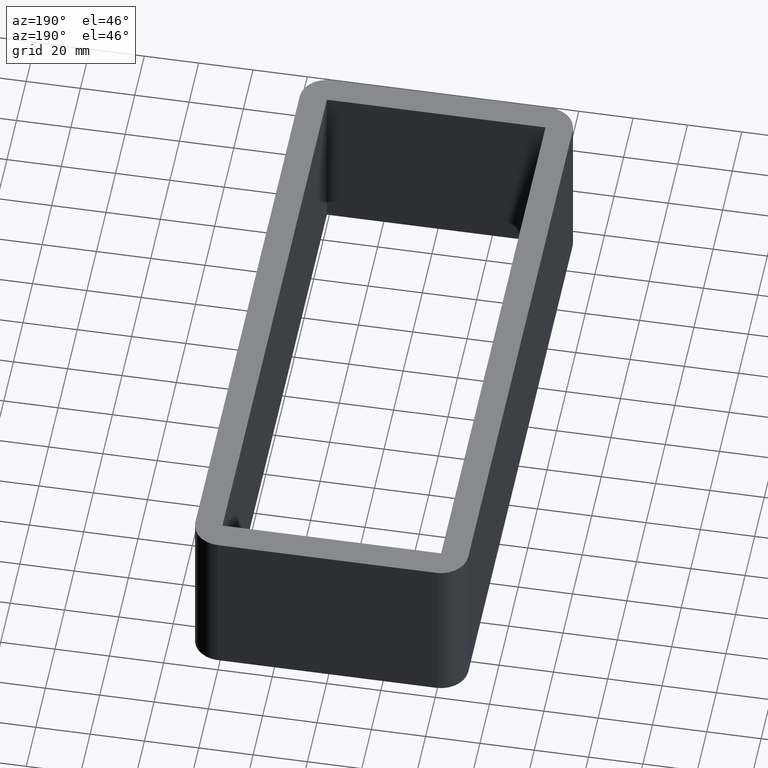
[diagram: clean part render]
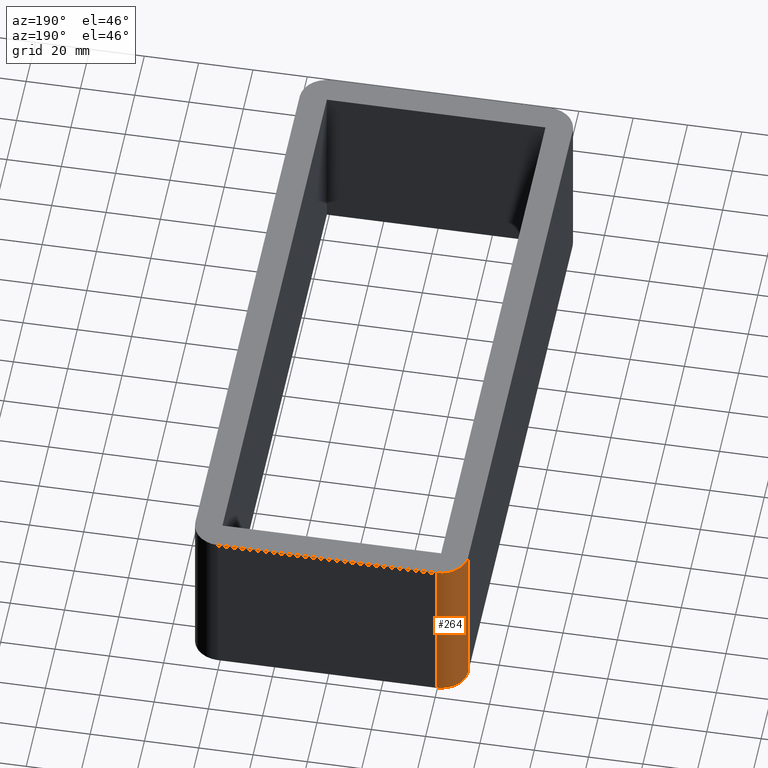
[diagram: same view with one face highlighted and labeled with its STEP entity id]
A machine part, auxiliary view. The second image highlights one B-rep face of the part: STEP entity #264.
In plain terms, the highlighted cylindrical surface (edge-blend (fillet) strip) has radius 10 mm, axis along (0, 0, -1).
Its self-contained STEP definition (entity closure, byte-faithful):
#21=CIRCLE('',#302,10.);
#22=CIRCLE('',#304,10.);
#26=CYLINDRICAL_SURFACE('',#303,10.);
#36=FACE_OUTER_BOUND('',#51,.T.);
#51=EDGE_LOOP('',(#211,#212,#213,#214));
#74=LINE('',#425,#102);
#79=LINE('',#441,#107);
#102=VECTOR('',#346,10.);
#107=VECTOR('',#361,10.);
#127=VERTEX_POINT('',#422);
#128=VERTEX_POINT('',#424);
#133=VERTEX_POINT('',#436);
#134=VERTEX_POINT('',#440);
#156=EDGE_CURVE('',#128,#127,#74,.T.);
#163=EDGE_CURVE('',#127,#133,#21,.T.);
#164=EDGE_CURVE('',#133,#134,#79,.T.);
#165=EDGE_CURVE('',#134,#128,#22,.T.);
#211=ORIENTED_EDGE('',*,*,#163,.T.);
#212=ORIENTED_EDGE('',*,*,#164,.T.);
#213=ORIENTED_EDGE('',*,*,#165,.T.);
#214=ORIENTED_EDGE('',*,*,#156,.T.);
#264=ADVANCED_FACE('',(#36),#26,.T.);
#302=AXIS2_PLACEMENT_3D('',#438,#357,#358);
#303=AXIS2_PLACEMENT_3D('',#439,#359,#360);
#304=AXIS2_PLACEMENT_3D('',#442,#362,#363);
#346=DIRECTION('',(0.,0.,-1.));
#357=DIRECTION('center_axis',(0.,0.,1.));
#358=DIRECTION('ref_axis',(-0.707106781186547,0.707106781186547,0.));
#359=DIRECTION('center_axis',(0.,0.,-1.));
#360=DIRECTION('ref_axis',(-0.707106781186547,0.707106781186547,0.));
#361=DIRECTION('',(0.,0.,1.));
#362=DIRECTION('center_axis',(0.,0.,-1.));
#363=DIRECTION('ref_axis',(-0.707106781186547,0.707106781186547,0.));
#422=CARTESIAN_POINT('',(-40.2499999999999,118.999999999999,-60.));
#424=CARTESIAN_POINT('',(-40.2499999999999,118.999999999999,0.));
#425=CARTESIAN_POINT('',(-40.2499999999999,118.999999999999,0.));
#436=CARTESIAN_POINT('',(-50.2499999999999,108.999999999999,-60.));
#438=CARTESIAN_POINT('Origin',(-40.2499999999999,108.999999999999,-60.));
#439=CARTESIAN_POINT('Origin',(-40.2499999999999,108.999999999999,0.));
#440=CARTESIAN_POINT('',(-50.2499999999999,108.999999999999,0.));
#441=CARTESIAN_POINT('',(-50.2499999999999,108.999999999999,0.));
#442=CARTESIAN_POINT('Origin',(-40.2499999999999,108.999999999999,0.));